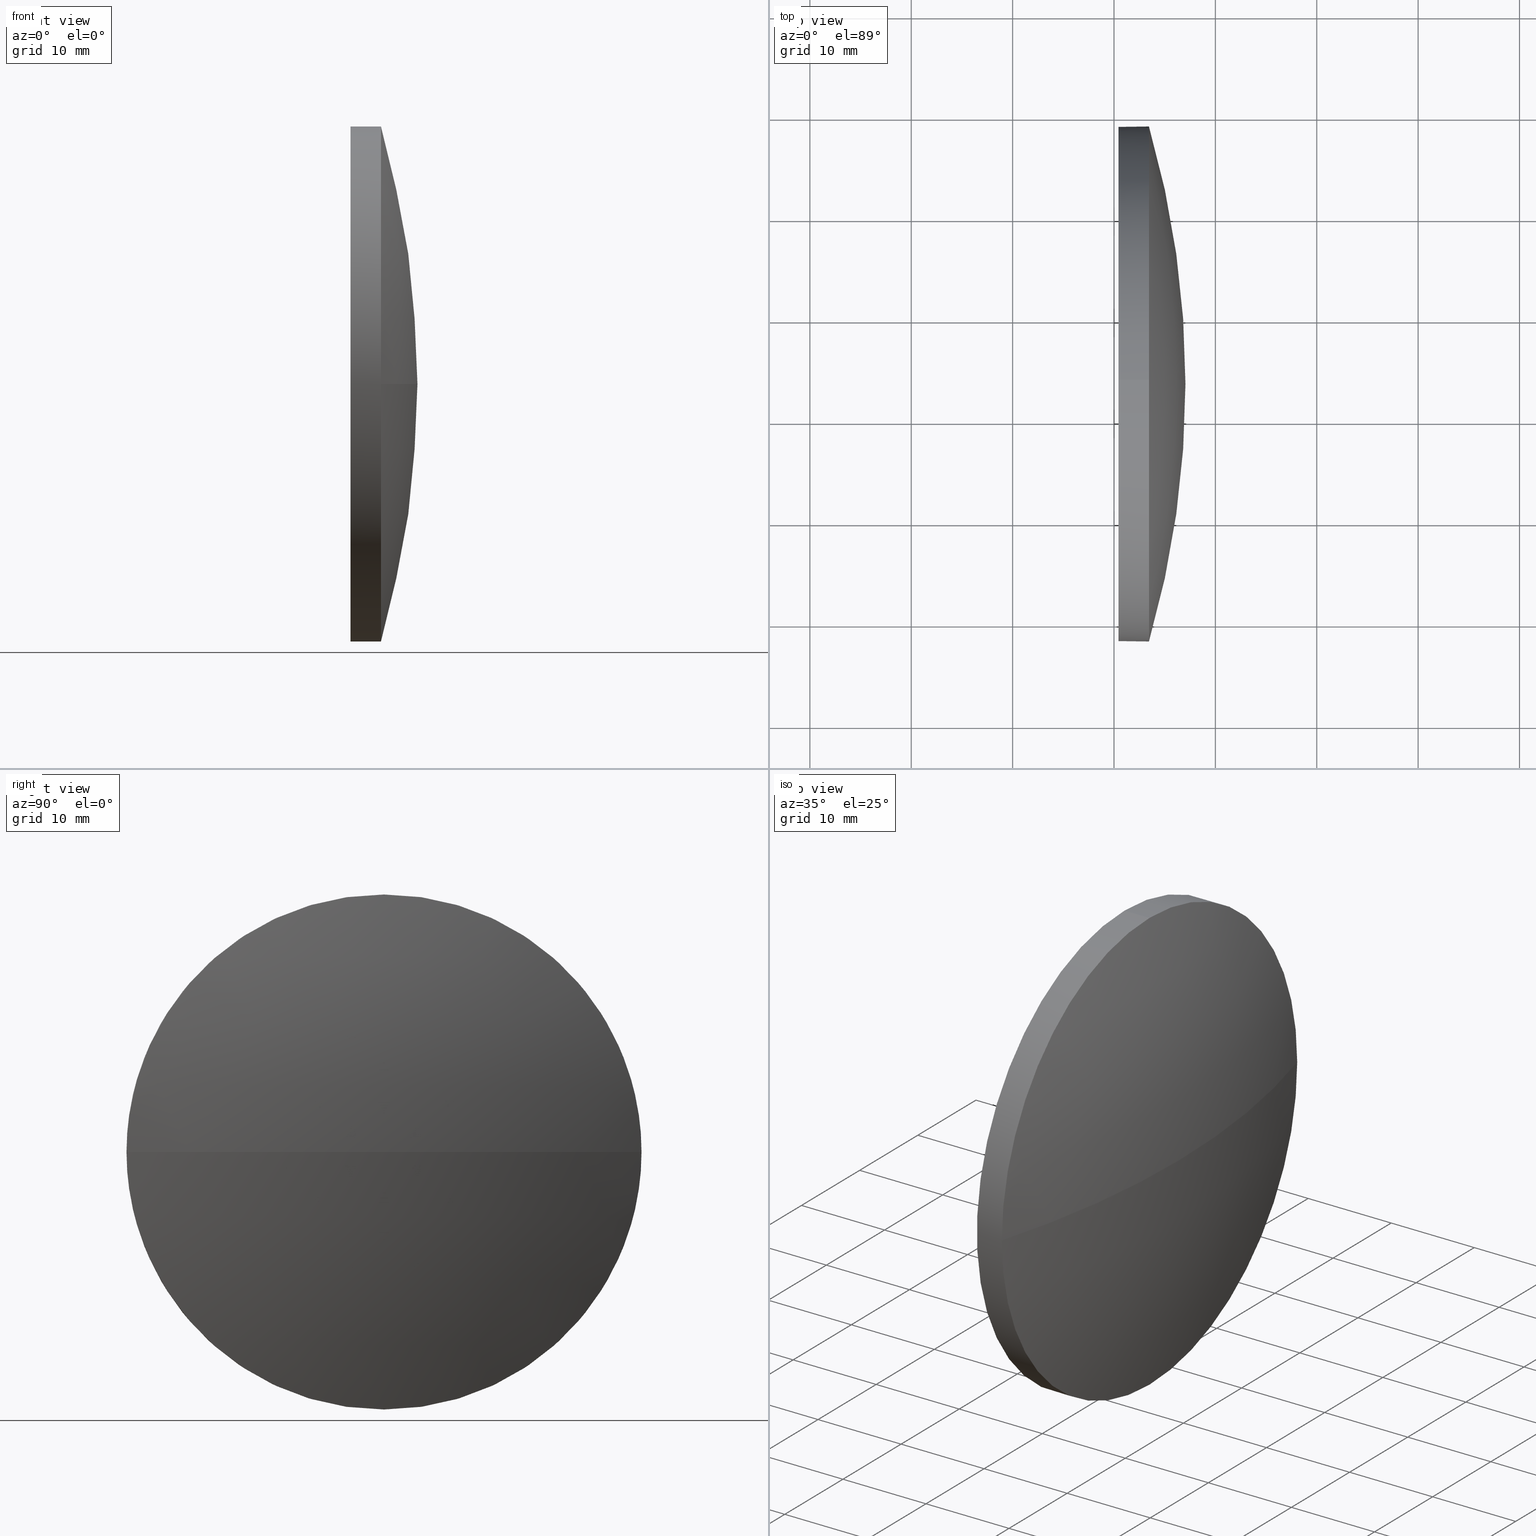
[diagram: canonical four-view strip — front | top / right | iso, engineering-drawing reading convention]
A machine part, canonical four-view strip (front | top / right | iso — engineering-drawing reading convention). The complete STEP part file that produces these views, byte-faithful:
ISO-10303-21;
HEADER;
FILE_DESCRIPTION (( 'STEP AP214' ),
    '1' );
FILE_NAME ('100388.STEP',
    '2019-06-05T01:44:25',
    ( '' ),
    ( '' ),
    'SwSTEP 2.0',
    'SolidWorks 2016',
    '' );
FILE_SCHEMA (( 'AUTOMOTIVE_DESIGN' ));
ENDSEC;

DATA;
#1 = ADVANCED_BREP_SHAPE_REPRESENTATION ( '100388', ( #166, #169 ), #92 ) ;
#2 = FILL_AREA_STYLE ('',( #122 ) ) ;
#3 = CARTESIAN_POINT ( 'NONE',  ( 528.7585254841761800, 103.5177711168334200, -25.40000000000000600 ) ) ;
#4 = CARTESIAN_POINT ( 'NONE',  ( 540.4485991064416300, 103.5177711168334200, 25.40000000000000600 ) ) ;
#5 = DIRECTION ( 'NONE',  ( 0.0000000000000000000, 0.0000000000000000000, 1.000000000000000000 ) ) ;
#6 = CARTESIAN_POINT ( 'NONE',  ( 0.0000000000000000000, 0.0000000000000000000, 0.0000000000000000000 ) ) ;
#7 = FILL_AREA_STYLE ('',( #18 ) ) ;
#8 = DIRECTION ( 'NONE',  ( -0.0000000000000000000, 0.0000000000000000000, 1.000000000000000000 ) ) ;
#9 = AXIS2_PLACEMENT_3D ( 'NONE', #42, #8, #110 ) ;
#10 = VERTEX_POINT ( 'NONE', #90 ) ;
#11 = DIRECTION ( 'NONE',  ( 1.000000000000000000, 0.0000000000000000000, 0.0000000000000000000 ) ) ;
#12 = PRODUCT_RELATED_PRODUCT_CATEGORY ( 'part', '', ( #155 ) ) ;
#13 = CARTESIAN_POINT ( 'NONE',  ( 540.4485991064416300, 103.5177711168334200, 0.0000000000000000000 ) ) ;
#14 = EDGE_CURVE ( 'NONE', #27, #10, #36, .T. ) ;
#15 = ORIENTED_EDGE ( 'NONE', *, *, #183, .F. ) ;
#16 = CARTESIAN_POINT ( 'NONE',  ( 543.4485991064416300, 128.9177711168333400, 0.0000000000000000000 ) ) ;
#17 = APPLICATION_PROTOCOL_DEFINITION ( 'draft international standard', 'automotive_design', 1998, #107 ) ;
#18 = FILL_AREA_STYLE_COLOUR ( '', #35 ) ;
#19 = ORIENTED_EDGE ( 'NONE', *, *, #96, .F. ) ;
#20 = DIRECTION ( 'NONE',  ( 0.0000000000000000000, 1.000000000000000000, 0.0000000000000000000 ) ) ;
#21 = MECHANICAL_DESIGN_GEOMETRIC_PRESENTATION_REPRESENTATION (  '', ( #123 ), #52 ) ;
#22 = CIRCLE ( 'NONE', #84, 25.40000000000000600 ) ;
#23 = VERTEX_POINT ( 'NONE', #76 ) ;
#24 = EDGE_CURVE ( 'NONE', #27, #167, #176, .T. ) ;
#25 = CARTESIAN_POINT ( 'NONE',  ( 543.4485991064416300, 103.5177711168334200, 0.0000000000000000000 ) ) ;
#26 =( NAMED_UNIT ( * ) PLANE_ANGLE_UNIT ( ) SI_UNIT ( $, .RADIAN. ) );
#27 = VERTEX_POINT ( 'NONE', #30 ) ;
#28 = ADVANCED_FACE ( 'NONE', ( #100 ), #72, .F. ) ;
#29 = CIRCLE ( 'NONE', #165, 25.40000000000000600 ) ;
#30 = CARTESIAN_POINT ( 'NONE',  ( 543.4485991064416300, 103.5177711168334200, -25.40000000000000600 ) ) ;
#31 = ORIENTED_EDGE ( 'NONE', *, *, #63, .T. ) ;
#32 = EDGE_CURVE ( 'NONE', #23, #60, #95, .T. ) ;
#33 = CIRCLE ( 'NONE', #148, 91.40555555555559400 ) ;
#34 = DIRECTION ( 'NONE',  ( 0.0000000000000000000, 0.0000000000000000000, 1.000000000000000000 ) ) ;
#35 = COLOUR_RGB ( '',1.000000000000000000, 1.000000000000000000, 1.000000000000000000 ) ;
#36 = CIRCLE ( 'NONE', #120, 25.40000000000000600 ) ;
#37 = PRODUCT_CONTEXT ( 'NONE', #125, 'mechanical' ) ;
#38 = UNCERTAINTY_MEASURE_WITH_UNIT (LENGTH_MEASURE( 1.000000000000000100E-005 ), #117, 'distance_accuracy_value', 'NONE');
#39 = DIRECTION ( 'NONE',  ( 0.0000000000000000000, 0.0000000000000000000, 1.000000000000000000 ) ) ;
#40 = EDGE_CURVE ( 'NONE', #140, #10, #33, .T. ) ;
#41 = FACE_OUTER_BOUND ( 'NONE', #182, .T. ) ;
#42 = CARTESIAN_POINT ( 'NONE',  ( 455.6430435508859800, 103.5177711168334200, 0.0000000000000000000 ) ) ;
#43 = EDGE_CURVE ( 'NONE', #23, #106, #29, .T. ) ;
#44 = DIRECTION ( 'NONE',  ( -1.000000000000000000, -0.0000000000000000000, -0.0000000000000000000 ) ) ;
#45 = CIRCLE ( 'NONE', #112, 25.40000000000000600 ) ;
#46 = CARTESIAN_POINT ( 'NONE',  ( 540.4485991064416300, 103.5177711168334200, -25.40000000000000600 ) ) ;
#47 = SURFACE_STYLE_FILL_AREA ( #7 ) ;
#48 = CARTESIAN_POINT ( 'NONE',  ( 455.6430435508859800, 103.5177711168334200, 0.0000000000000000000 ) ) ;
#49 = ORIENTED_EDGE ( 'NONE', *, *, #32, .T. ) ;
#50 = PRODUCT_DEFINITION_SHAPE ( 'NONE', 'NONE',  #159 ) ;
#51 = CARTESIAN_POINT ( 'NONE',  ( 543.4485991064416300, 103.5177711168334200, 0.0000000000000000000 ) ) ;
#52 =( GEOMETRIC_REPRESENTATION_CONTEXT ( 3 ) GLOBAL_UNCERTAINTY_ASSIGNED_CONTEXT ( ( #38 ) ) GLOBAL_UNIT_ASSIGNED_CONTEXT ( ( #117, #26, #97 ) ) REPRESENTATION_CONTEXT ( 'NONE', 'WORKASPACE' ) );
#53 = PRODUCT_DEFINITION_FORMATION_WITH_SPECIFIED_SOURCE ( '�κ�', '', #155, .NOT_KNOWN. ) ;
#54 = EDGE_LOOP ( 'NONE', ( #128, #98, #170, #49, #19 ) ) ;
#55 =( LENGTH_UNIT ( ) NAMED_UNIT ( * ) SI_UNIT ( .MILLI., .METRE. ) );
#56 = AXIS2_PLACEMENT_3D ( 'NONE', #13, #119, #171 ) ;
#57 = DIRECTION ( 'NONE',  ( 0.0000000000000000000, 0.0000000000000000000, 1.000000000000000000 ) ) ;
#58 = ORIENTED_EDGE ( 'NONE', *, *, #108, .F. ) ;
#59 = AXIS2_PLACEMENT_3D ( 'NONE', #81, #164, #20 ) ;
#60 = VERTEX_POINT ( 'NONE', #4 ) ;
#61 = CARTESIAN_POINT ( 'NONE',  ( 543.4485991064416300, 103.5177711168334200, 0.0000000000000000000 ) ) ;
#62 =( LENGTH_UNIT ( ) NAMED_UNIT ( * ) SI_UNIT ( .MILLI., .METRE. ) );
#63 = EDGE_CURVE ( 'NONE', #60, #167, #186, .T. ) ;
#64 = ORIENTED_EDGE ( 'NONE', *, *, #63, .F. ) ;
#65 = DIRECTION ( 'NONE',  ( -1.000000000000000000, -0.0000000000000000000, -0.0000000000000000000 ) ) ;
#66 = DIRECTION ( 'NONE',  ( -0.0000000000000000000, 0.0000000000000000000, -1.000000000000000000 ) ) ;
#67 = CIRCLE ( 'NONE', #56, 25.40000000000000600 ) ;
#68 = DIRECTION ( 'NONE',  ( 0.0000000000000000000, 0.0000000000000000000, 1.000000000000000000 ) ) ;
#69 = UNCERTAINTY_MEASURE_WITH_UNIT (LENGTH_MEASURE( 1.000000000000000100E-005 ), #55, 'distance_accuracy_value', 'NONE');
#70 = DIRECTION ( 'NONE',  ( 0.0000000000000000000, 0.0000000000000000000, 1.000000000000000000 ) ) ;
#71 = FACE_OUTER_BOUND ( 'NONE', #54, .T. ) ;
#72 = PLANE ( 'NONE',  #156 ) ;
#73 = AXIS2_PLACEMENT_3D ( 'NONE', #83, #66, #152 ) ;
#74 = ORIENTED_EDGE ( 'NONE', *, *, #89, .F. ) ;
#75 = DIRECTION ( 'NONE',  ( -1.000000000000000000, -0.0000000000000000000, -0.0000000000000000000 ) ) ;
#76 = CARTESIAN_POINT ( 'NONE',  ( 543.4485991064416300, 103.5177711168334200, 25.40000000000000600 ) ) ;
#77 = CYLINDRICAL_SURFACE ( 'NONE', #157, 25.40000000000000600 ) ;
#78 =( NAMED_UNIT ( * ) SI_UNIT ( $, .STERADIAN. ) SOLID_ANGLE_UNIT ( ) );
#79 = SURFACE_STYLE_USAGE ( .BOTH. , #149 ) ;
#80 = SURFACE_STYLE_FILL_AREA ( #2 ) ;
#81 = CARTESIAN_POINT ( 'NONE',  ( 455.6430435508859800, 103.5177711168334200, 0.0000000000000000000 ) ) ;
#82 = PRESENTATION_LAYER_ASSIGNMENT (  '', '', ( #124 ) ) ;
#83 = CARTESIAN_POINT ( 'NONE',  ( 455.6430435508859800, 103.5177711168334200, 0.0000000000000000000 ) ) ;
#84 = AXIS2_PLACEMENT_3D ( 'NONE', #25, #129, #70 ) ;
#85 = SHAPE_DEFINITION_REPRESENTATION ( #50, #1 ) ;
#86 = CARTESIAN_POINT ( 'NONE',  ( 543.4485991064416300, 103.5177711168334200, 0.0000000000000000000 ) ) ;
#87 = SURFACE_SIDE_STYLE ('',( #80 ) ) ;
#88 = ORIENTED_EDGE ( 'NONE', *, *, #183, .T. ) ;
#89 = EDGE_CURVE ( 'NONE', #10, #23, #45, .T. ) ;
#90 = CARTESIAN_POINT ( 'NONE',  ( 543.4485991064416300, 78.11777111683346700, -3.110602869834270200E-015 ) ) ;
#91 = MECHANICAL_DESIGN_GEOMETRIC_PRESENTATION_REPRESENTATION (  '', ( #124 ), #137 ) ;
#92 =( GEOMETRIC_REPRESENTATION_CONTEXT ( 3 ) GLOBAL_UNCERTAINTY_ASSIGNED_CONTEXT ( ( #69 ) ) GLOBAL_UNIT_ASSIGNED_CONTEXT ( ( #55, #180, #78 ) ) REPRESENTATION_CONTEXT ( 'NONE', 'WORKASPACE' ) );
#93 = DIRECTION ( 'NONE',  ( 1.000000000000000000, 0.0000000000000000000, 0.0000000000000000000 ) ) ;
#94 = EDGE_LOOP ( 'NONE', ( #147, #168, #178, #74 ) ) ;
#95 = LINE ( 'NONE', #158, #133 ) ;
#96 = EDGE_CURVE ( 'NONE', #167, #60, #67, .T. ) ;
#97 =( NAMED_UNIT ( * ) SI_UNIT ( $, .STERADIAN. ) SOLID_ANGLE_UNIT ( ) );
#98 = ORIENTED_EDGE ( 'NONE', *, *, #14, .T. ) ;
#99 = PRESENTATION_LAYER_ASSIGNMENT (  '', '', ( #123 ) ) ;
#100 = FACE_OUTER_BOUND ( 'NONE', #144, .T. ) ;
#101 = DIRECTION ( 'NONE',  ( 0.0000000000000000000, 1.000000000000000000, 1.224646799147353500E-016 ) ) ;
#102 = EDGE_LOOP ( 'NONE', ( #88, #114, #64, #160, #163 ) ) ;
#103 = PRODUCT_DEFINITION_CONTEXT ( 'detailed design', #107, 'design' ) ;
#104 = PRESENTATION_STYLE_ASSIGNMENT (( #185 ) ) ;
#105 = DIRECTION ( 'NONE',  ( -1.000000000000000000, -0.0000000000000000000, -0.0000000000000000000 ) ) ;
#106 = VERTEX_POINT ( 'NONE', #16 ) ;
#107 = APPLICATION_CONTEXT ( 'automotive_design' ) ;
#108 = EDGE_CURVE ( 'NONE', #140, #106, #179, .T. ) ;
#109 =( NAMED_UNIT ( * ) SI_UNIT ( $, .STERADIAN. ) SOLID_ANGLE_UNIT ( ) );
#110 = DIRECTION ( 'NONE',  ( 1.000000000000000000, 0.0000000000000000000, 0.0000000000000000000 ) ) ;
#111 = COLOUR_RGB ( '',1.000000000000000000, 1.000000000000000000, 1.000000000000000000 ) ;
#112 = AXIS2_PLACEMENT_3D ( 'NONE', #51, #173, #5 ) ;
#113 = AXIS2_PLACEMENT_3D ( 'NONE', #161, #105, #34 ) ;
#114 = ORIENTED_EDGE ( 'NONE', *, *, #24, .T. ) ;
#115 = DIRECTION ( 'NONE',  ( -1.000000000000000000, -0.0000000000000000000, -0.0000000000000000000 ) ) ;
#116 = ADVANCED_FACE ( 'NONE', ( #41 ), #145, .T. ) ;
#117 =( LENGTH_UNIT ( ) NAMED_UNIT ( * ) SI_UNIT ( .MILLI., .METRE. ) );
#118 = DIRECTION ( 'NONE',  ( 0.0000000000000000000, 0.0000000000000000000, -1.000000000000000000 ) ) ;
#119 = DIRECTION ( 'NONE',  ( -1.000000000000000000, -0.0000000000000000000, -0.0000000000000000000 ) ) ;
#120 = AXIS2_PLACEMENT_3D ( 'NONE', #86, #115, #68 ) ;
#121 = PRESENTATION_STYLE_ASSIGNMENT (( #79 ) ) ;
#122 = FILL_AREA_STYLE_COLOUR ( '', #111 ) ;
#123 = STYLED_ITEM ( 'NONE', ( #104 ), #166 ) ;
#124 = STYLED_ITEM ( 'NONE', ( #121 ), #1 ) ;
#125 = APPLICATION_CONTEXT ( 'automotive_design' ) ;
#126 = UNCERTAINTY_MEASURE_WITH_UNIT (LENGTH_MEASURE( 1.000000000000000100E-005 ), #62, 'distance_accuracy_value', 'NONE');
#127 = CARTESIAN_POINT ( 'NONE',  ( 547.0485991064415400, 103.5177711168334200, 0.0000000000000000000 ) ) ;
#128 = ORIENTED_EDGE ( 'NONE', *, *, #24, .F. ) ;
#129 = DIRECTION ( 'NONE',  ( -1.000000000000000000, -0.0000000000000000000, -0.0000000000000000000 ) ) ;
#130 = DIRECTION ( 'NONE',  ( 0.0000000000000000000, 1.224646799147353200E-016, -1.000000000000000000 ) ) ;
#131 = AXIS2_PLACEMENT_3D ( 'NONE', #141, #44, #57 ) ;
#132 = ORIENTED_EDGE ( 'NONE', *, *, #40, .T. ) ;
#133 = VECTOR ( 'NONE', #75, 1000.000000000000000 ) ;
#134 = DIRECTION ( 'NONE',  ( 0.0000000000000000000, 0.0000000000000000000, 1.000000000000000000 ) ) ;
#135 = ORIENTED_EDGE ( 'NONE', *, *, #14, .F. ) ;
#136 = ORIENTED_EDGE ( 'NONE', *, *, #96, .T. ) ;
#137 =( GEOMETRIC_REPRESENTATION_CONTEXT ( 3 ) GLOBAL_UNCERTAINTY_ASSIGNED_CONTEXT ( ( #126 ) ) GLOBAL_UNIT_ASSIGNED_CONTEXT ( ( #62, #177, #109 ) ) REPRESENTATION_CONTEXT ( 'NONE', 'WORKASPACE' ) );
#138 = VECTOR ( 'NONE', #143, 1000.000000000000000 ) ;
#139 = ADVANCED_FACE ( 'NONE', ( #142 ), #151, .T. ) ;
#140 = VERTEX_POINT ( 'NONE', #127 ) ;
#141 = CARTESIAN_POINT ( 'NONE',  ( 528.7585254841761800, 103.5177711168334200, 0.0000000000000000000 ) ) ;
#142 = FACE_OUTER_BOUND ( 'NONE', #94, .T. ) ;
#143 = DIRECTION ( 'NONE',  ( -1.000000000000000000, -0.0000000000000000000, -0.0000000000000000000 ) ) ;
#144 = EDGE_LOOP ( 'NONE', ( #31, #136 ) ) ;
#145 = SPHERICAL_SURFACE ( 'NONE', #73, 91.40555555555559400 ) ;
#146 = DIRECTION ( 'NONE',  ( -1.000000000000000000, -0.0000000000000000000, -0.0000000000000000000 ) ) ;
#147 = ORIENTED_EDGE ( 'NONE', *, *, #40, .F. ) ;
#148 = AXIS2_PLACEMENT_3D ( 'NONE', #48, #130, #101 ) ;
#149 = SURFACE_SIDE_STYLE ('',( #47 ) ) ;
#150 = CARTESIAN_POINT ( 'NONE',  ( 528.7585254841761800, 103.5177711168334200, 0.0000000000000000000 ) ) ;
#151 = SPHERICAL_SURFACE ( 'NONE', #59, 91.40555555555559400 ) ;
#152 = DIRECTION ( 'NONE',  ( 0.0000000000000000000, 1.000000000000000000, 0.0000000000000000000 ) ) ;
#153 = ADVANCED_FACE ( 'NONE', ( #71 ), #77, .T. ) ;
#154 = CARTESIAN_POINT ( 'NONE',  ( 540.4485991064416300, 103.5177711168334200, 0.0000000000000000000 ) ) ;
#155 = PRODUCT ( '100388', '100388', '', ( #37 ) ) ;
#156 = AXIS2_PLACEMENT_3D ( 'NONE', #154, #11, #118 ) ;
#157 = AXIS2_PLACEMENT_3D ( 'NONE', #150, #65, #162 ) ;
#158 = CARTESIAN_POINT ( 'NONE',  ( 528.7585254841761800, 103.5177711168334200, 25.40000000000000600 ) ) ;
#159 = PRODUCT_DEFINITION ( 'δ֪', '', #53, #103 ) ;
#160 = ORIENTED_EDGE ( 'NONE', *, *, #32, .F. ) ;
#161 = CARTESIAN_POINT ( 'NONE',  ( 540.4485991064416300, 103.5177711168334200, 0.0000000000000000000 ) ) ;
#162 = DIRECTION ( 'NONE',  ( 0.0000000000000000000, 0.0000000000000000000, 1.000000000000000000 ) ) ;
#163 = ORIENTED_EDGE ( 'NONE', *, *, #43, .T. ) ;
#164 = DIRECTION ( 'NONE',  ( -0.0000000000000000000, 0.0000000000000000000, -1.000000000000000000 ) ) ;
#165 = AXIS2_PLACEMENT_3D ( 'NONE', #61, #146, #134 ) ;
#166 = MANIFOLD_SOLID_BREP ( '��ת1', #172 ) ;
#167 = VERTEX_POINT ( 'NONE', #46 ) ;
#168 = ORIENTED_EDGE ( 'NONE', *, *, #108, .T. ) ;
#169 = AXIS2_PLACEMENT_3D ( 'NONE', #6, #39, #93 ) ;
#170 = ORIENTED_EDGE ( 'NONE', *, *, #89, .T. ) ;
#171 = DIRECTION ( 'NONE',  ( 0.0000000000000000000, 0.0000000000000000000, 1.000000000000000000 ) ) ;
#172 = CLOSED_SHELL ( 'NONE', ( #184, #116, #139, #153, #28 ) ) ;
#173 = DIRECTION ( 'NONE',  ( -1.000000000000000000, -0.0000000000000000000, -0.0000000000000000000 ) ) ;
#174 = CYLINDRICAL_SURFACE ( 'NONE', #131, 25.40000000000000600 ) ;
#175 = APPLICATION_PROTOCOL_DEFINITION ( 'draft international standard', 'automotive_design', 1998, #125 ) ;
#176 = LINE ( 'NONE', #3, #138 ) ;
#177 =( NAMED_UNIT ( * ) PLANE_ANGLE_UNIT ( ) SI_UNIT ( $, .RADIAN. ) );
#178 = ORIENTED_EDGE ( 'NONE', *, *, #43, .F. ) ;
#179 = CIRCLE ( 'NONE', #9, 91.40555555555558000 ) ;
#180 =( NAMED_UNIT ( * ) PLANE_ANGLE_UNIT ( ) SI_UNIT ( $, .RADIAN. ) );
#181 = FACE_OUTER_BOUND ( 'NONE', #102, .T. ) ;
#182 = EDGE_LOOP ( 'NONE', ( #58, #132, #135, #15 ) ) ;
#183 = EDGE_CURVE ( 'NONE', #106, #27, #22, .T. ) ;
#184 = ADVANCED_FACE ( 'NONE', ( #181 ), #174, .T. ) ;
#185 = SURFACE_STYLE_USAGE ( .BOTH. , #87 ) ;
#186 = CIRCLE ( 'NONE', #113, 25.40000000000000600 ) ;
ENDSEC;
END-ISO-10303-21;
